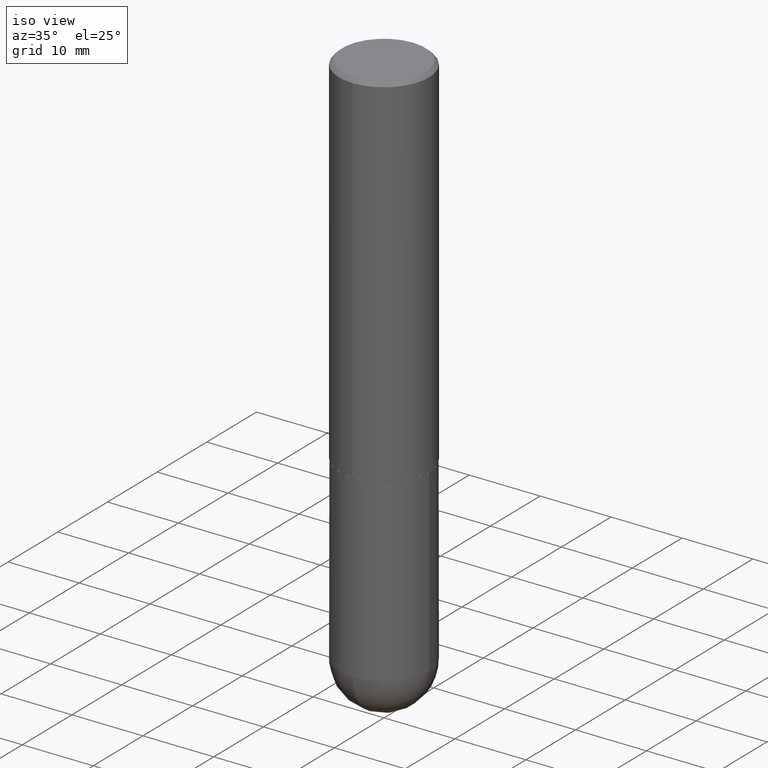
[diagram: clean part render]
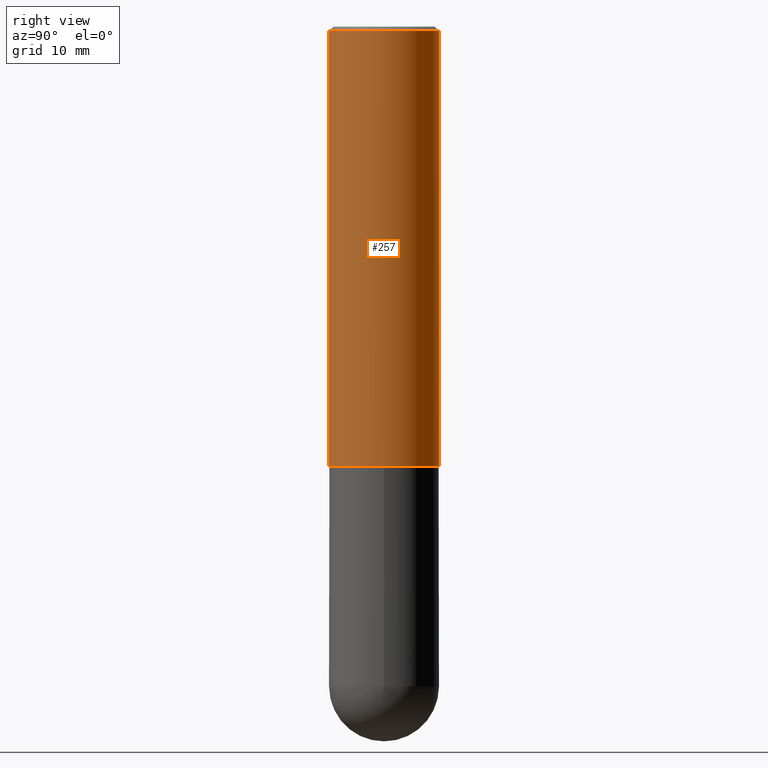
[diagram: tour spotlight — one face highlighted and labeled with its STEP entity id]
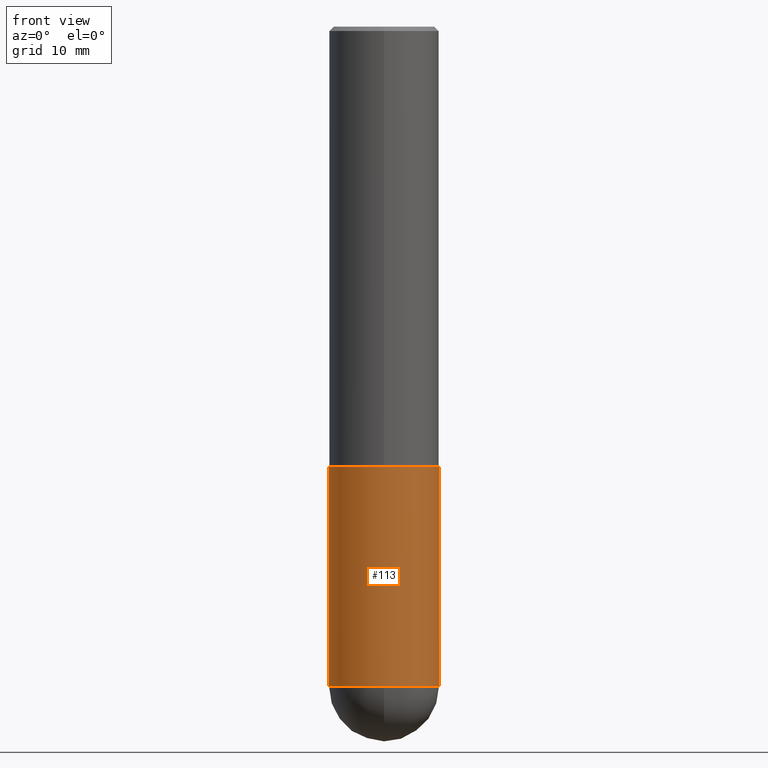
[diagram: tour spotlight — one face highlighted and labeled with its STEP entity id]
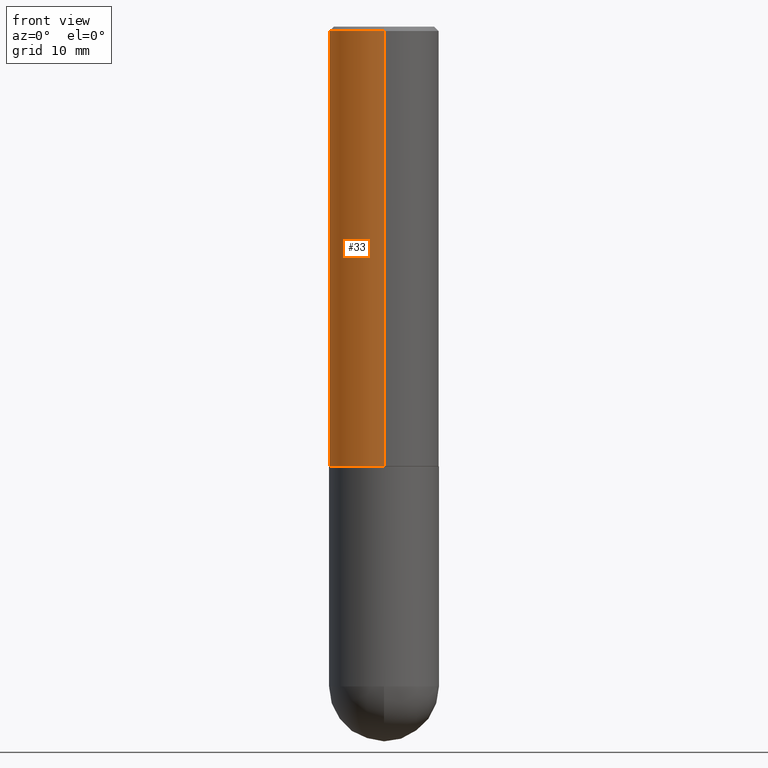
[diagram: tour spotlight — one face highlighted and labeled with its STEP entity id]
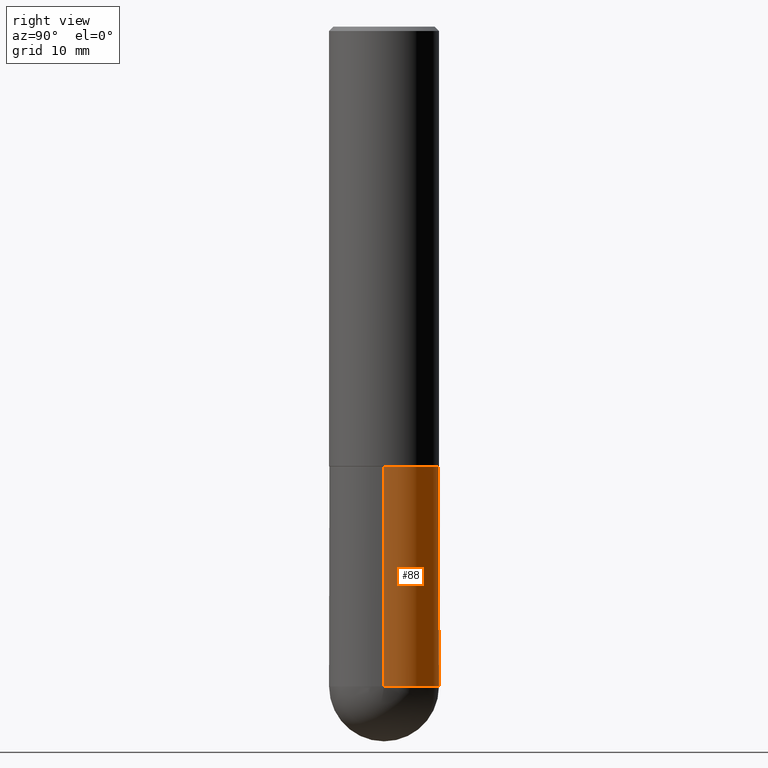
[diagram: tour spotlight — one face highlighted and labeled with its STEP entity id]
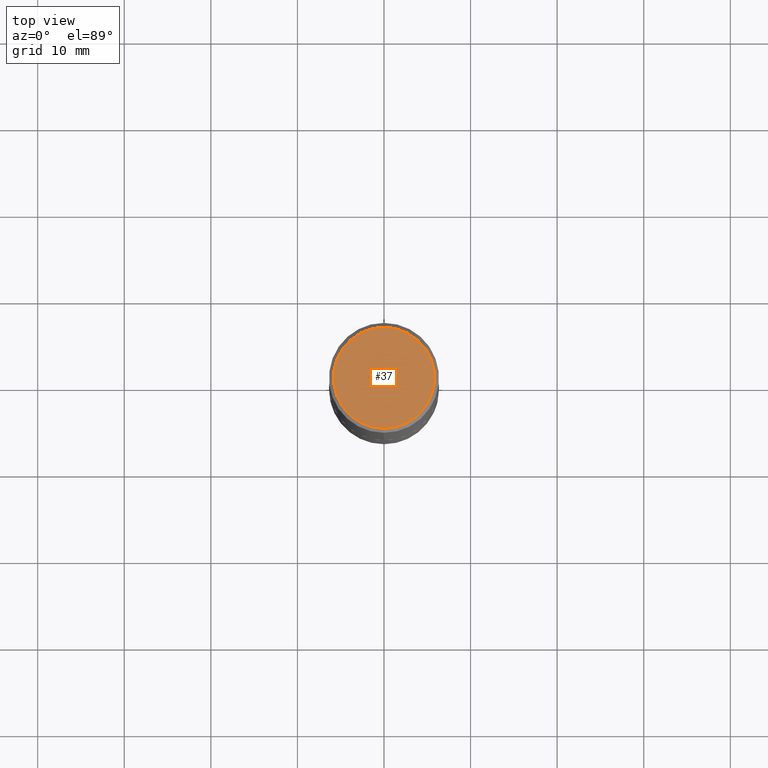
[diagram: tour spotlight — one face highlighted and labeled with its STEP entity id]
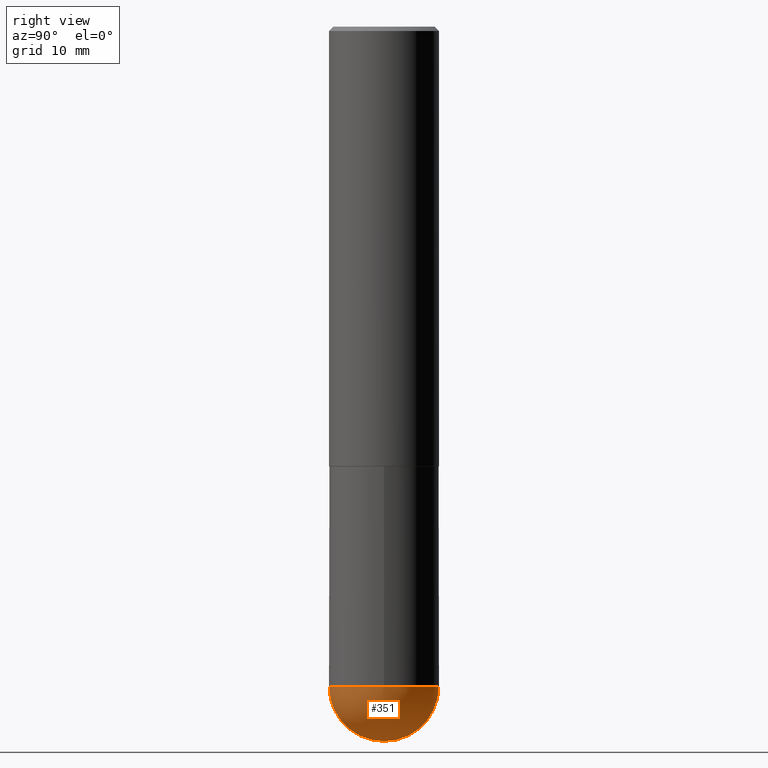
[diagram: tour spotlight — one face highlighted and labeled with its STEP entity id]
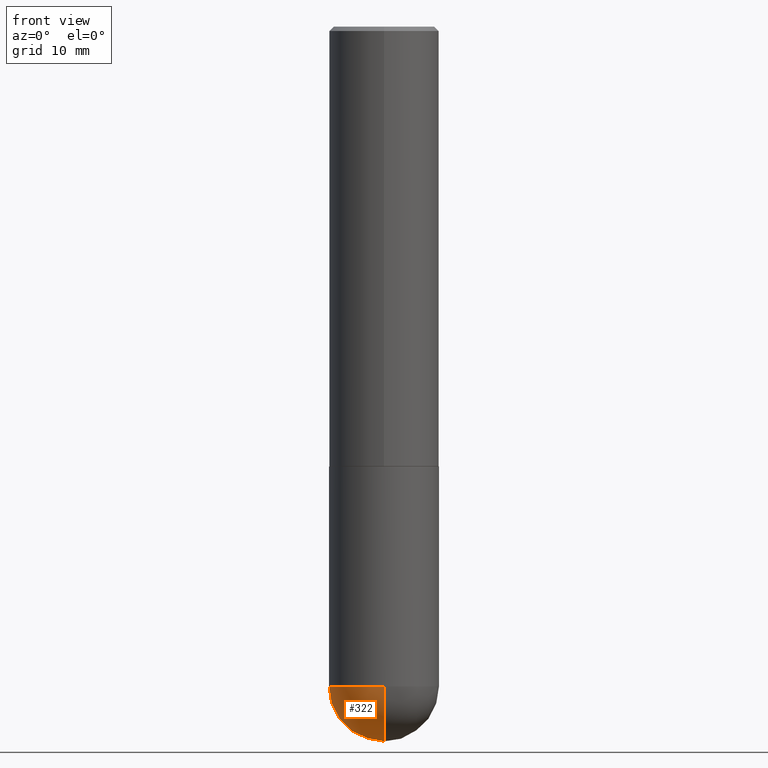
[diagram: tour spotlight — one face highlighted and labeled with its STEP entity id]
A machine part: a face-by-face anatomy tour. The part has 13 B-rep faces; the first image is the clean iso view, then the 7 largest visible faces are spotlighted one at a time (largest first), each with its STEP entity span.

Face 1 — right view, entity #257. In plain terms, the highlighted cylindrical surface (partial cylindrical patch) has radius 6.35 mm, axis along (-0, 0, 1).
Definition (entity closure, byte-faithful):
#4 = CIRCLE ( 'NONE', #123, 0.2500000000000002776 ) ;
#5 = EDGE_CURVE ( 'NONE', #205, #50, #81, .T. ) ;
#11 = ORIENTED_EDGE ( 'NONE', *, *, #206, .F. ) ;
#20 = CARTESIAN_POINT ( 'NONE',  ( 1.776356839400251254E-15, 0.2500000000000001110, -8.723846720953441693E-16 ) ) ;
#22 = CARTESIAN_POINT ( 'NONE',  ( -1.745740669421519346E-15, -0.2500000000000072164, -1.998999999999998778 ) ) ;
#27 = DIRECTION ( 'NONE',  ( -2.446825351752170194E-29, 3.489538688381374705E-15, 1.000000000000000000 ) ) ;
#34 = CIRCLE ( 'NONE', #202, 0.2500000000000000000 ) ;
#44 = EDGE_CURVE ( 'NONE', #205, #328, #4, .T. ) ;
#50 = VERTEX_POINT ( 'NONE', #249 ) ;
#61 = EDGE_CURVE ( 'NONE', #328, #170, #211, .T. ) ;
#63 = EDGE_LOOP ( 'NONE', ( #130, #69, #11, #240 ) ) ;
#69 = ORIENTED_EDGE ( 'NONE', *, *, #61, .T. ) ;
#81 = LINE ( 'NONE', #217, #375 ) ;
#111 = CARTESIAN_POINT ( 'NONE',  ( 4.891203878152586770E-29, -6.975587838074367466E-15, -1.998999999999999666 ) ) ;
#123 = AXIS2_PLACEMENT_3D ( 'NONE', #111, #343, #137 ) ;
#130 = ORIENTED_EDGE ( 'NONE', *, *, #44, .T. ) ;
#137 = DIRECTION ( 'NONE',  ( -6.982962677686265922E-15, -1.000000000000000000, 3.278217592397112312E-15 ) ) ;
#143 = AXIS2_PLACEMENT_3D ( 'NONE', #376, #171, #301 ) ;
#150 = FACE_OUTER_BOUND ( 'NONE', #63, .T. ) ;
#170 = VERTEX_POINT ( 'NONE', #390 ) ;
#171 = DIRECTION ( 'NONE',  ( -2.446825351752170194E-29, 3.489538688381374705E-15, 1.000000000000000000 ) ) ;
#174 = DIRECTION ( 'NONE',  ( -2.446825351752170474E-29, 3.489538688381374705E-15, 1.000000000000000000 ) ) ;
#193 = CARTESIAN_POINT ( 'NONE',  ( 1.776356839400276497E-15, 0.2499999999999933109, -1.999000000000000554 ) ) ;
#202 = AXIS2_PLACEMENT_3D ( 'NONE', #279, #27, #372 ) ;
#205 = VERTEX_POINT ( 'NONE', #22 ) ;
#206 = EDGE_CURVE ( 'NONE', #50, #170, #34, .T. ) ;
#211 = LINE ( 'NONE', #20, #401 ) ;
#217 = CARTESIAN_POINT ( 'NONE',  ( -1.745740669421567467E-15, -0.2500000000000001110, 8.723846720953441693E-16 ) ) ;
#240 = ORIENTED_EDGE ( 'NONE', *, *, #5, .F. ) ;
#249 = CARTESIAN_POINT ( 'NONE',  ( -1.715124499442882299E-15, -0.2500000000000000555, -0.01999999999999918510 ) ) ;
#257 = ADVANCED_FACE ( 'NONE', ( #150 ), #363, .T. ) ;
#279 = CARTESIAN_POINT ( 'NONE',  ( 4.893650703504352860E-31, -6.979077376762769329E-17, -0.02000000000000005593 ) ) ;
#301 = DIRECTION ( 'NONE',  ( -6.982962677686266711E-15, -1.000000000000000000, 3.489538688381375099E-15 ) ) ;
#328 = VERTEX_POINT ( 'NONE', #193 ) ;
#343 = DIRECTION ( 'NONE',  ( -2.446825351752170194E-29, 3.489538688381374705E-15, 1.000000000000000000 ) ) ;
#363 = CYLINDRICAL_SURFACE ( 'NONE', #143, 0.2500000000000001110 ) ;
#369 = DIRECTION ( 'NONE',  ( -2.446825351752170474E-29, 3.489538688381374705E-15, 1.000000000000000000 ) ) ;
#372 = DIRECTION ( 'NONE',  ( -6.982962677686265922E-15, -1.000000000000000000, 3.483106191921935554E-15 ) ) ;
#375 = VECTOR ( 'NONE', #369, 39.37007874015748143 ) ;
#376 = CARTESIAN_POINT ( 'NONE',  ( 0.000000000000000000, 0.000000000000000000, 0.000000000000000000 ) ) ;
#390 = CARTESIAN_POINT ( 'NONE',  ( 1.745740669421566875E-15, 0.2499999999999999167, -0.02000000000000092676 ) ) ;
#401 = VECTOR ( 'NONE', #174, 39.37007874015748143 ) ;

Face 2 — front view, entity #113. In plain terms, the highlighted cylindrical surface (partial cylindrical patch) has radius 6.35 mm, axis along (-0, 0, 1).
Definition (entity closure, byte-faithful):
#6 = CARTESIAN_POINT ( 'NONE',  ( 0.2500000000000000000, -8.728703347107857054E-15, -2.000000000000000000 ) ) ;
#38 = ORIENTED_EDGE ( 'NONE', *, *, #199, .F. ) ;
#43 = ORIENTED_EDGE ( 'NONE', *, *, #225, .F. ) ;
#45 = EDGE_LOOP ( 'NONE', ( #38, #395, #387, #128, #43 ) ) ;
#53 = FACE_OUTER_BOUND ( 'NONE', #45, .T. ) ;
#60 = DIRECTION ( 'NONE',  ( 1.000000000000000000, -6.982962677686270655E-15, 0.000000000000000000 ) ) ;
#78 = CIRCLE ( 'NONE', #271, 0.2500000000000000000 ) ;
#83 = CYLINDRICAL_SURFACE ( 'NONE', #392, 0.2500000000000000000 ) ;
#91 = AXIS2_PLACEMENT_3D ( 'NONE', #243, #144, #398 ) ;
#101 = VECTOR ( 'NONE', #313, 39.37007874015748143 ) ;
#112 = DIRECTION ( 'NONE',  ( 1.000000000000000000, -6.982962677686266711E-15, 0.000000000000000000 ) ) ;
#113 = ADVANCED_FACE ( 'NONE', ( #53 ), #83, .T. ) ;
#126 = VERTEX_POINT ( 'NONE', #185 ) ;
#128 = ORIENTED_EDGE ( 'NONE', *, *, #381, .T. ) ;
#144 = DIRECTION ( 'NONE',  ( -2.445468806185136597E-29, 3.491481338843145583E-15, 1.000000000000000000 ) ) ;
#178 = CARTESIAN_POINT ( 'NONE',  ( -0.2500000000000000000, 1.776356839400250465E-15, -1.229733772563726445E-29 ) ) ;
#180 = CARTESIAN_POINT ( 'NONE',  ( 0.000000000000000000, 0.000000000000000000, 0.000000000000000000 ) ) ;
#185 = CARTESIAN_POINT ( 'NONE',  ( -0.2500000000000000000, -6.952346507707612900E-15, -2.000000000000000000 ) ) ;
#188 = CARTESIAN_POINT ( 'NONE',  ( 0.2500000000000000000, -1.745740669421566678E-15, 1.219044193948983948E-29 ) ) ;
#195 = CARTESIAN_POINT ( 'NONE',  ( -0.2500000000000000000, -6.952346507707614478E-15, -2.999999999999999556 ) ) ;
#199 = EDGE_CURVE ( 'NONE', #354, #126, #368, .T. ) ;
#207 = EDGE_CURVE ( 'NONE', #354, #391, #237, .T. ) ;
#214 = CARTESIAN_POINT ( 'NONE',  ( 4.890937612370273194E-29, -6.982962677686291165E-15, -2.000000000000000000 ) ) ;
#223 = DIRECTION ( 'NONE',  ( -2.445468806185136597E-29, 3.491481338843145583E-15, 1.000000000000000000 ) ) ;
#225 = EDGE_CURVE ( 'NONE', #126, #321, #276, .T. ) ;
#237 = CIRCLE ( 'NONE', #91, 0.2500000000000000000 ) ;
#243 = CARTESIAN_POINT ( 'NONE',  ( 7.336406418555408669E-29, -1.047444401652943478E-14, -2.999999999999999556 ) ) ;
#250 = DIRECTION ( 'NONE',  ( -2.445468806185136597E-29, 3.491481338843145583E-15, 1.000000000000000000 ) ) ;
#259 = CARTESIAN_POINT ( 'NONE',  ( -1.776356839400180848E-15, -0.2500000000000110467, -2.999999999999998668 ) ) ;
#270 = VECTOR ( 'NONE', #407, 39.37007874015748143 ) ;
#271 = AXIS2_PLACEMENT_3D ( 'NONE', #320, #223, #60 ) ;
#276 = CIRCLE ( 'NONE', #365, 0.2500000000000000000 ) ;
#285 = LINE ( 'NONE', #188, #101 ) ;
#291 = CARTESIAN_POINT ( 'NONE',  ( 0.2500000000000000000, -1.047444401652943162E-14, -2.999999999999999556 ) ) ;
#295 = VERTEX_POINT ( 'NONE', #291 ) ;
#309 = DIRECTION ( 'NONE',  ( -2.445468806185136597E-29, 3.491481338843145583E-15, 1.000000000000000000 ) ) ;
#313 = DIRECTION ( 'NONE',  ( -2.445468806185136877E-29, 3.491481338843145188E-15, 1.000000000000000000 ) ) ;
#320 = CARTESIAN_POINT ( 'NONE',  ( 7.336406418555408669E-29, -1.047444401652943478E-14, -2.999999999999999556 ) ) ;
#321 = VERTEX_POINT ( 'NONE', #6 ) ;
#341 = DIRECTION ( 'NONE',  ( 1.000000000000000000, -6.982962677686266711E-15, 4.876176775795935793E-29 ) ) ;
#354 = VERTEX_POINT ( 'NONE', #195 ) ;
#365 = AXIS2_PLACEMENT_3D ( 'NONE', #214, #250, #112 ) ;
#368 = LINE ( 'NONE', #178, #270 ) ;
#370 = EDGE_CURVE ( 'NONE', #391, #295, #78, .T. ) ;
#381 = EDGE_CURVE ( 'NONE', #295, #321, #285, .T. ) ;
#387 = ORIENTED_EDGE ( 'NONE', *, *, #370, .T. ) ;
#391 = VERTEX_POINT ( 'NONE', #259 ) ;
#392 = AXIS2_PLACEMENT_3D ( 'NONE', #180, #309, #341 ) ;
#395 = ORIENTED_EDGE ( 'NONE', *, *, #207, .T. ) ;
#398 = DIRECTION ( 'NONE',  ( 1.000000000000000000, -6.982962677686270655E-15, 0.000000000000000000 ) ) ;
#407 = DIRECTION ( 'NONE',  ( -2.445468806185136877E-29, 3.491481338843145188E-15, 1.000000000000000000 ) ) ;

Face 3 — front view, entity #33. In plain terms, the highlighted cylindrical surface (partial cylindrical patch) has radius 6.35 mm, axis along (-0, 0, 1).
Definition (entity closure, byte-faithful):
#5 = EDGE_CURVE ( 'NONE', #205, #50, #81, .T. ) ;
#17 = DIRECTION ( 'NONE',  ( -6.982962677686265922E-15, -1.000000000000000000, 3.278217592397112312E-15 ) ) ;
#20 = CARTESIAN_POINT ( 'NONE',  ( 1.776356839400251254E-15, 0.2500000000000001110, -8.723846720953441693E-16 ) ) ;
#22 = CARTESIAN_POINT ( 'NONE',  ( -1.745740669421519346E-15, -0.2500000000000072164, -1.998999999999998778 ) ) ;
#32 = CARTESIAN_POINT ( 'NONE',  ( 4.893650703504352860E-31, -6.979077376762769329E-17, -0.02000000000000005593 ) ) ;
#33 = ADVANCED_FACE ( 'NONE', ( #374 ), #86, .T. ) ;
#36 = AXIS2_PLACEMENT_3D ( 'NONE', #213, #242, #17 ) ;
#50 = VERTEX_POINT ( 'NONE', #249 ) ;
#61 = EDGE_CURVE ( 'NONE', #328, #170, #211, .T. ) ;
#81 = LINE ( 'NONE', #217, #375 ) ;
#85 = CIRCLE ( 'NONE', #107, 0.2500000000000000000 ) ;
#86 = CYLINDRICAL_SURFACE ( 'NONE', #135, 0.2500000000000001110 ) ;
#95 = ORIENTED_EDGE ( 'NONE', *, *, #97, .T. ) ;
#97 = EDGE_CURVE ( 'NONE', #328, #205, #220, .T. ) ;
#107 = AXIS2_PLACEMENT_3D ( 'NONE', #32, #121, #318 ) ;
#121 = DIRECTION ( 'NONE',  ( -2.446825351752170194E-29, 3.489538688381374705E-15, 1.000000000000000000 ) ) ;
#135 = AXIS2_PLACEMENT_3D ( 'NONE', #177, #305, #332 ) ;
#170 = VERTEX_POINT ( 'NONE', #390 ) ;
#174 = DIRECTION ( 'NONE',  ( -2.446825351752170474E-29, 3.489538688381374705E-15, 1.000000000000000000 ) ) ;
#177 = CARTESIAN_POINT ( 'NONE',  ( 0.000000000000000000, 0.000000000000000000, 0.000000000000000000 ) ) ;
#193 = CARTESIAN_POINT ( 'NONE',  ( 1.776356839400276497E-15, 0.2499999999999933109, -1.999000000000000554 ) ) ;
#205 = VERTEX_POINT ( 'NONE', #22 ) ;
#211 = LINE ( 'NONE', #20, #401 ) ;
#213 = CARTESIAN_POINT ( 'NONE',  ( 4.891203878152586770E-29, -6.975587838074367466E-15, -1.998999999999999666 ) ) ;
#217 = CARTESIAN_POINT ( 'NONE',  ( -1.745740669421567467E-15, -0.2500000000000001110, 8.723846720953441693E-16 ) ) ;
#220 = CIRCLE ( 'NONE', #36, 0.2500000000000002776 ) ;
#242 = DIRECTION ( 'NONE',  ( -2.446825351752170194E-29, 3.489538688381374705E-15, 1.000000000000000000 ) ) ;
#249 = CARTESIAN_POINT ( 'NONE',  ( -1.715124499442882299E-15, -0.2500000000000000555, -0.01999999999999918510 ) ) ;
#272 = ORIENTED_EDGE ( 'NONE', *, *, #61, .F. ) ;
#305 = DIRECTION ( 'NONE',  ( -2.446825351752170194E-29, 3.489538688381374705E-15, 1.000000000000000000 ) ) ;
#318 = DIRECTION ( 'NONE',  ( -6.982962677686265922E-15, -1.000000000000000000, 3.483106191921935554E-15 ) ) ;
#323 = EDGE_LOOP ( 'NONE', ( #272, #95, #329, #327 ) ) ;
#327 = ORIENTED_EDGE ( 'NONE', *, *, #366, .F. ) ;
#328 = VERTEX_POINT ( 'NONE', #193 ) ;
#329 = ORIENTED_EDGE ( 'NONE', *, *, #5, .T. ) ;
#332 = DIRECTION ( 'NONE',  ( -6.982962677686266711E-15, -1.000000000000000000, 3.489538688381375099E-15 ) ) ;
#366 = EDGE_CURVE ( 'NONE', #170, #50, #85, .T. ) ;
#369 = DIRECTION ( 'NONE',  ( -2.446825351752170474E-29, 3.489538688381374705E-15, 1.000000000000000000 ) ) ;
#374 = FACE_OUTER_BOUND ( 'NONE', #323, .T. ) ;
#375 = VECTOR ( 'NONE', #369, 39.37007874015748143 ) ;
#390 = CARTESIAN_POINT ( 'NONE',  ( 1.745740669421566875E-15, 0.2499999999999999167, -0.02000000000000092676 ) ) ;
#401 = VECTOR ( 'NONE', #174, 39.37007874015748143 ) ;

Face 4 — right view, entity #88. In plain terms, the highlighted cylindrical surface (partial cylindrical patch) has radius 6.35 mm, axis along (-0, 0, 1).
Definition (entity closure, byte-faithful):
#6 = CARTESIAN_POINT ( 'NONE',  ( 0.2500000000000000000, -8.728703347107857054E-15, -2.000000000000000000 ) ) ;
#28 = EDGE_CURVE ( 'NONE', #163, #354, #260, .T. ) ;
#41 = EDGE_LOOP ( 'NONE', ( #102, #224, #100, #96, #235 ) ) ;
#68 = EDGE_CURVE ( 'NONE', #321, #126, #72, .T. ) ;
#72 = CIRCLE ( 'NONE', #264, 0.2500000000000000000 ) ;
#77 = DIRECTION ( 'NONE',  ( -2.445468806185136597E-29, 3.491481338843145583E-15, 1.000000000000000000 ) ) ;
#79 = DIRECTION ( 'NONE',  ( -2.445468806185136597E-29, 3.491481338843145583E-15, 1.000000000000000000 ) ) ;
#82 = DIRECTION ( 'NONE',  ( 1.000000000000000000, -6.982962677686266711E-15, 4.876176775795935793E-29 ) ) ;
#88 = ADVANCED_FACE ( 'NONE', ( #303 ), #139, .T. ) ;
#96 = ORIENTED_EDGE ( 'NONE', *, *, #381, .F. ) ;
#100 = ORIENTED_EDGE ( 'NONE', *, *, #68, .F. ) ;
#101 = VECTOR ( 'NONE', #313, 39.37007874015748143 ) ;
#102 = ORIENTED_EDGE ( 'NONE', *, *, #28, .T. ) ;
#109 = CARTESIAN_POINT ( 'NONE',  ( 0.000000000000000000, 0.000000000000000000, 0.000000000000000000 ) ) ;
#126 = VERTEX_POINT ( 'NONE', #185 ) ;
#138 = CARTESIAN_POINT ( 'NONE',  ( 7.336406418555408669E-29, -1.047444401652943478E-14, -2.999999999999999556 ) ) ;
#139 = CYLINDRICAL_SURFACE ( 'NONE', #157, 0.2500000000000000000 ) ;
#142 = DIRECTION ( 'NONE',  ( -2.445468806185136597E-29, 3.491481338843145583E-15, 1.000000000000000000 ) ) ;
#157 = AXIS2_PLACEMENT_3D ( 'NONE', #109, #142, #82 ) ;
#163 = VERTEX_POINT ( 'NONE', #397 ) ;
#178 = CARTESIAN_POINT ( 'NONE',  ( -0.2500000000000000000, 1.776356839400250465E-15, -1.229733772563726445E-29 ) ) ;
#185 = CARTESIAN_POINT ( 'NONE',  ( -0.2500000000000000000, -6.952346507707612900E-15, -2.000000000000000000 ) ) ;
#188 = CARTESIAN_POINT ( 'NONE',  ( 0.2500000000000000000, -1.745740669421566678E-15, 1.219044193948983948E-29 ) ) ;
#195 = CARTESIAN_POINT ( 'NONE',  ( -0.2500000000000000000, -6.952346507707614478E-15, -2.999999999999999556 ) ) ;
#199 = EDGE_CURVE ( 'NONE', #354, #126, #368, .T. ) ;
#210 = DIRECTION ( 'NONE',  ( 1.000000000000000000, -6.982962677686270655E-15, 0.000000000000000000 ) ) ;
#224 = ORIENTED_EDGE ( 'NONE', *, *, #199, .T. ) ;
#235 = ORIENTED_EDGE ( 'NONE', *, *, #284, .T. ) ;
#245 = DIRECTION ( 'NONE',  ( 1.000000000000000000, -6.982962677686266711E-15, 0.000000000000000000 ) ) ;
#248 = DIRECTION ( 'NONE',  ( 1.000000000000000000, -6.982962677686270655E-15, 0.000000000000000000 ) ) ;
#260 = CIRCLE ( 'NONE', #287, 0.2500000000000000000 ) ;
#264 = AXIS2_PLACEMENT_3D ( 'NONE', #371, #77, #245 ) ;
#270 = VECTOR ( 'NONE', #407, 39.37007874015748143 ) ;
#284 = EDGE_CURVE ( 'NONE', #295, #163, #350, .T. ) ;
#285 = LINE ( 'NONE', #188, #101 ) ;
#287 = AXIS2_PLACEMENT_3D ( 'NONE', #367, #402, #248 ) ;
#291 = CARTESIAN_POINT ( 'NONE',  ( 0.2500000000000000000, -1.047444401652943162E-14, -2.999999999999999556 ) ) ;
#295 = VERTEX_POINT ( 'NONE', #291 ) ;
#303 = FACE_OUTER_BOUND ( 'NONE', #41, .T. ) ;
#313 = DIRECTION ( 'NONE',  ( -2.445468806185136877E-29, 3.491481338843145188E-15, 1.000000000000000000 ) ) ;
#321 = VERTEX_POINT ( 'NONE', #6 ) ;
#350 = CIRCLE ( 'NONE', #393, 0.2500000000000000000 ) ;
#354 = VERTEX_POINT ( 'NONE', #195 ) ;
#367 = CARTESIAN_POINT ( 'NONE',  ( 7.336406418555408669E-29, -1.047444401652943478E-14, -2.999999999999999556 ) ) ;
#368 = LINE ( 'NONE', #178, #270 ) ;
#371 = CARTESIAN_POINT ( 'NONE',  ( 4.890937612370273194E-29, -6.982962677686291165E-15, -2.000000000000000000 ) ) ;
#381 = EDGE_CURVE ( 'NONE', #295, #321, #285, .T. ) ;
#393 = AXIS2_PLACEMENT_3D ( 'NONE', #138, #79, #210 ) ;
#397 = CARTESIAN_POINT ( 'NONE',  ( 1.745740669421640436E-15, 0.2499999999999896194, -3.000000000000000888 ) ) ;
#402 = DIRECTION ( 'NONE',  ( -2.445468806185136597E-29, 3.491481338843145583E-15, 1.000000000000000000 ) ) ;
#407 = DIRECTION ( 'NONE',  ( -2.445468806185136877E-29, 3.491481338843145188E-15, 1.000000000000000000 ) ) ;

Face 5 — top view, entity #37. In plain terms, the highlighted planar face has unit normal (0, -0, -1).
Definition (entity closure, byte-faithful):
#35 = DIRECTION ( 'NONE',  ( -2.446825351752170194E-29, 3.489538688381374705E-15, 1.000000000000000000 ) ) ;
#37 = ADVANCED_FACE ( 'NONE', ( #406 ), #149, .F. ) ;
#48 = DIRECTION ( 'NONE',  ( 2.446825351752169914E-29, -3.489538688381374705E-15, -1.000000000000000000 ) ) ;
#103 = VERTEX_POINT ( 'NONE', #337 ) ;
#106 = DIRECTION ( 'NONE',  ( 6.982962677686265922E-15, 1.000000000000000000, -3.489538688381374705E-15 ) ) ;
#108 = DIRECTION ( 'NONE',  ( -2.446825351752170194E-29, 3.489538688381374705E-15, 1.000000000000000000 ) ) ;
#115 = ORIENTED_EDGE ( 'NONE', *, *, #297, .T. ) ;
#133 = AXIS2_PLACEMENT_3D ( 'NONE', #258, #35, #256 ) ;
#145 = AXIS2_PLACEMENT_3D ( 'NONE', #281, #108, #312 ) ;
#149 = PLANE ( 'NONE',  #165 ) ;
#165 = AXIS2_PLACEMENT_3D ( 'NONE', #221, #48, #106 ) ;
#192 = EDGE_CURVE ( 'NONE', #103, #236, #315, .T. ) ;
#221 = CARTESIAN_POINT ( 'NONE',  ( 1.606081415867843237E-15, 0.2300000000000002875, -9.650207777546365185E-16 ) ) ;
#236 = VERTEX_POINT ( 'NONE', #344 ) ;
#256 = DIRECTION ( 'NONE',  ( -6.982962677686265922E-15, -1.000000000000000000, 3.489538688381374705E-15 ) ) ;
#258 = CARTESIAN_POINT ( 'NONE',  ( 7.948604127755579372E-45, -1.133589759586583103E-30, -3.248537588538385073E-16 ) ) ;
#266 = ORIENTED_EDGE ( 'NONE', *, *, #192, .T. ) ;
#281 = CARTESIAN_POINT ( 'NONE',  ( 7.948604127755579372E-45, -1.133589759586583103E-30, -3.248537588538385073E-16 ) ) ;
#289 = CIRCLE ( 'NONE', #133, 0.2300000000000002875 ) ;
#297 = EDGE_CURVE ( 'NONE', #236, #103, #289, .T. ) ;
#312 = DIRECTION ( 'NONE',  ( -6.982962677686265922E-15, -1.000000000000000000, 3.489538688381374705E-15 ) ) ;
#315 = CIRCLE ( 'NONE', #145, 0.2300000000000002875 ) ;
#337 = CARTESIAN_POINT ( 'NONE',  ( -1.646519519465167954E-15, -0.2300000000000002875, 4.777401394738787083E-16 ) ) ;
#344 = CARTESIAN_POINT ( 'NONE',  ( 1.675911042644705154E-15, 0.2300000000000002875, -1.127447657181555624E-15 ) ) ;
#359 = EDGE_LOOP ( 'NONE', ( #115, #266 ) ) ;
#406 = FACE_OUTER_BOUND ( 'NONE', #359, .T. ) ;

Face 6 — right view, entity #351. In plain terms, the highlighted spherical surface has radius 6.35 mm.
Definition (entity closure, byte-faithful):
#1 = CARTESIAN_POINT ( 'NONE',  ( 7.005286640641522422E-29, -1.094862638466948349E-14, -2.999999999999999556 ) ) ;
#2 = AXIS2_PLACEMENT_3D ( 'NONE', #1, #65, #62 ) ;
#7 = AXIS2_PLACEMENT_3D ( 'NONE', #229, #89, #155 ) ;
#9 = EDGE_LOOP ( 'NONE', ( #59, #298, #198, #132 ) ) ;
#14 = DIRECTION ( 'NONE',  ( 1.000000000000000000, -6.982962677686265922E-15, 4.883557194083112340E-29 ) ) ;
#23 = CIRCLE ( 'NONE', #7, 0.2500000000000006661 ) ;
#59 = ORIENTED_EDGE ( 'NONE', *, *, #352, .F. ) ;
#60 = DIRECTION ( 'NONE',  ( 1.000000000000000000, -6.982962677686270655E-15, 0.000000000000000000 ) ) ;
#62 = DIRECTION ( 'NONE',  ( 6.982962677686265922E-15, 1.000000000000000000, -4.370956789862809317E-15 ) ) ;
#64 = SPHERICAL_SURFACE ( 'NONE', #2, 0.2500000000000006661 ) ;
#65 = DIRECTION ( 'NONE',  ( -1.000000000000000000, 6.982962677686265922E-15, -4.883557194083112340E-29 ) ) ;
#78 = CIRCLE ( 'NONE', #271, 0.2500000000000000000 ) ;
#79 = DIRECTION ( 'NONE',  ( -2.445468806185136597E-29, 3.491481338843145583E-15, 1.000000000000000000 ) ) ;
#89 = DIRECTION ( 'NONE',  ( -1.000000000000000000, 7.105427357601001070E-15, -4.926315508542082329E-29 ) ) ;
#90 = CARTESIAN_POINT ( 'NONE',  ( 7.627343420802550890E-29, -1.180618863439093125E-14, -3.250000000000000444 ) ) ;
#118 = FACE_OUTER_BOUND ( 'NONE', #9, .T. ) ;
#132 = ORIENTED_EDGE ( 'NONE', *, *, #370, .F. ) ;
#138 = CARTESIAN_POINT ( 'NONE',  ( 7.336406418555408669E-29, -1.047444401652943478E-14, -2.999999999999999556 ) ) ;
#155 = DIRECTION ( 'NONE',  ( -7.105427357601001859E-15, -1.000000000000000000, 0.000000000000000000 ) ) ;
#161 = EDGE_CURVE ( 'NONE', #300, #163, #216, .T. ) ;
#163 = VERTEX_POINT ( 'NONE', #397 ) ;
#198 = ORIENTED_EDGE ( 'NONE', *, *, #284, .F. ) ;
#210 = DIRECTION ( 'NONE',  ( 1.000000000000000000, -6.982962677686270655E-15, 0.000000000000000000 ) ) ;
#216 = CIRCLE ( 'NONE', #325, 0.2500000000000006661 ) ;
#223 = DIRECTION ( 'NONE',  ( -2.445468806185136597E-29, 3.491481338843145583E-15, 1.000000000000000000 ) ) ;
#229 = CARTESIAN_POINT ( 'NONE',  ( 7.005286640641522422E-29, -1.094862638466948349E-14, -2.999999999999999556 ) ) ;
#259 = CARTESIAN_POINT ( 'NONE',  ( -1.776356839400180848E-15, -0.2500000000000110467, -2.999999999999998668 ) ) ;
#271 = AXIS2_PLACEMENT_3D ( 'NONE', #320, #223, #60 ) ;
#274 = DIRECTION ( 'NONE',  ( 6.982962677686266711E-15, 1.000000000000000000, 0.000000000000000000 ) ) ;
#284 = EDGE_CURVE ( 'NONE', #295, #163, #350, .T. ) ;
#291 = CARTESIAN_POINT ( 'NONE',  ( 0.2500000000000000000, -1.047444401652943162E-14, -2.999999999999999556 ) ) ;
#295 = VERTEX_POINT ( 'NONE', #291 ) ;
#298 = ORIENTED_EDGE ( 'NONE', *, *, #161, .T. ) ;
#300 = VERTEX_POINT ( 'NONE', #90 ) ;
#320 = CARTESIAN_POINT ( 'NONE',  ( 7.336406418555408669E-29, -1.047444401652943478E-14, -2.999999999999999556 ) ) ;
#325 = AXIS2_PLACEMENT_3D ( 'NONE', #362, #14, #274 ) ;
#350 = CIRCLE ( 'NONE', #393, 0.2500000000000000000 ) ;
#351 = ADVANCED_FACE ( 'NONE', ( #118 ), #64, .T. ) ;
#352 = EDGE_CURVE ( 'NONE', #300, #391, #23, .T. ) ;
#362 = CARTESIAN_POINT ( 'NONE',  ( 7.005286640641522422E-29, -1.094862638466948349E-14, -2.999999999999999556 ) ) ;
#370 = EDGE_CURVE ( 'NONE', #391, #295, #78, .T. ) ;
#391 = VERTEX_POINT ( 'NONE', #259 ) ;
#393 = AXIS2_PLACEMENT_3D ( 'NONE', #138, #79, #210 ) ;
#397 = CARTESIAN_POINT ( 'NONE',  ( 1.745740669421640436E-15, 0.2499999999999896194, -3.000000000000000888 ) ) ;

Face 7 — front view, entity #322. In plain terms, the highlighted spherical surface has radius 6.35 mm.
Definition (entity closure, byte-faithful):
#7 = AXIS2_PLACEMENT_3D ( 'NONE', #229, #89, #155 ) ;
#14 = DIRECTION ( 'NONE',  ( 1.000000000000000000, -6.982962677686265922E-15, 4.883557194083112340E-29 ) ) ;
#23 = CIRCLE ( 'NONE', #7, 0.2500000000000006661 ) ;
#28 = EDGE_CURVE ( 'NONE', #163, #354, #260, .T. ) ;
#71 = ORIENTED_EDGE ( 'NONE', *, *, #28, .F. ) ;
#89 = DIRECTION ( 'NONE',  ( -1.000000000000000000, 7.105427357601001070E-15, -4.926315508542082329E-29 ) ) ;
#90 = CARTESIAN_POINT ( 'NONE',  ( 7.627343420802550890E-29, -1.180618863439093125E-14, -3.250000000000000444 ) ) ;
#91 = AXIS2_PLACEMENT_3D ( 'NONE', #243, #144, #398 ) ;
#144 = DIRECTION ( 'NONE',  ( -2.445468806185136597E-29, 3.491481338843145583E-15, 1.000000000000000000 ) ) ;
#154 = DIRECTION ( 'NONE',  ( -1.000000000000000000, 6.982962677686265922E-15, -4.883557194083112340E-29 ) ) ;
#155 = DIRECTION ( 'NONE',  ( -7.105427357601001859E-15, -1.000000000000000000, 0.000000000000000000 ) ) ;
#161 = EDGE_CURVE ( 'NONE', #300, #163, #216, .T. ) ;
#163 = VERTEX_POINT ( 'NONE', #397 ) ;
#168 = EDGE_LOOP ( 'NONE', ( #269, #204, #296, #71 ) ) ;
#169 = AXIS2_PLACEMENT_3D ( 'NONE', #189, #154, #347 ) ;
#189 = CARTESIAN_POINT ( 'NONE',  ( 7.005286640641522422E-29, -1.094862638466948349E-14, -2.999999999999999556 ) ) ;
#195 = CARTESIAN_POINT ( 'NONE',  ( -0.2500000000000000000, -6.952346507707614478E-15, -2.999999999999999556 ) ) ;
#204 = ORIENTED_EDGE ( 'NONE', *, *, #352, .T. ) ;
#207 = EDGE_CURVE ( 'NONE', #354, #391, #237, .T. ) ;
#216 = CIRCLE ( 'NONE', #325, 0.2500000000000006661 ) ;
#229 = CARTESIAN_POINT ( 'NONE',  ( 7.005286640641522422E-29, -1.094862638466948349E-14, -2.999999999999999556 ) ) ;
#237 = CIRCLE ( 'NONE', #91, 0.2500000000000000000 ) ;
#243 = CARTESIAN_POINT ( 'NONE',  ( 7.336406418555408669E-29, -1.047444401652943478E-14, -2.999999999999999556 ) ) ;
#248 = DIRECTION ( 'NONE',  ( 1.000000000000000000, -6.982962677686270655E-15, 0.000000000000000000 ) ) ;
#259 = CARTESIAN_POINT ( 'NONE',  ( -1.776356839400180848E-15, -0.2500000000000110467, -2.999999999999998668 ) ) ;
#260 = CIRCLE ( 'NONE', #287, 0.2500000000000000000 ) ;
#269 = ORIENTED_EDGE ( 'NONE', *, *, #161, .F. ) ;
#274 = DIRECTION ( 'NONE',  ( 6.982962677686266711E-15, 1.000000000000000000, 0.000000000000000000 ) ) ;
#287 = AXIS2_PLACEMENT_3D ( 'NONE', #367, #402, #248 ) ;
#296 = ORIENTED_EDGE ( 'NONE', *, *, #207, .F. ) ;
#300 = VERTEX_POINT ( 'NONE', #90 ) ;
#322 = ADVANCED_FACE ( 'NONE', ( #385 ), #348, .T. ) ;
#325 = AXIS2_PLACEMENT_3D ( 'NONE', #362, #14, #274 ) ;
#347 = DIRECTION ( 'NONE',  ( 6.982962677686265922E-15, 1.000000000000000000, -4.370956789862809317E-15 ) ) ;
#348 = SPHERICAL_SURFACE ( 'NONE', #169, 0.2500000000000006661 ) ;
#352 = EDGE_CURVE ( 'NONE', #300, #391, #23, .T. ) ;
#354 = VERTEX_POINT ( 'NONE', #195 ) ;
#362 = CARTESIAN_POINT ( 'NONE',  ( 7.005286640641522422E-29, -1.094862638466948349E-14, -2.999999999999999556 ) ) ;
#367 = CARTESIAN_POINT ( 'NONE',  ( 7.336406418555408669E-29, -1.047444401652943478E-14, -2.999999999999999556 ) ) ;
#385 = FACE_OUTER_BOUND ( 'NONE', #168, .T. ) ;
#391 = VERTEX_POINT ( 'NONE', #259 ) ;
#397 = CARTESIAN_POINT ( 'NONE',  ( 1.745740669421640436E-15, 0.2499999999999896194, -3.000000000000000888 ) ) ;
#398 = DIRECTION ( 'NONE',  ( 1.000000000000000000, -6.982962677686270655E-15, 0.000000000000000000 ) ) ;
#402 = DIRECTION ( 'NONE',  ( -2.445468806185136597E-29, 3.491481338843145583E-15, 1.000000000000000000 ) ) ;